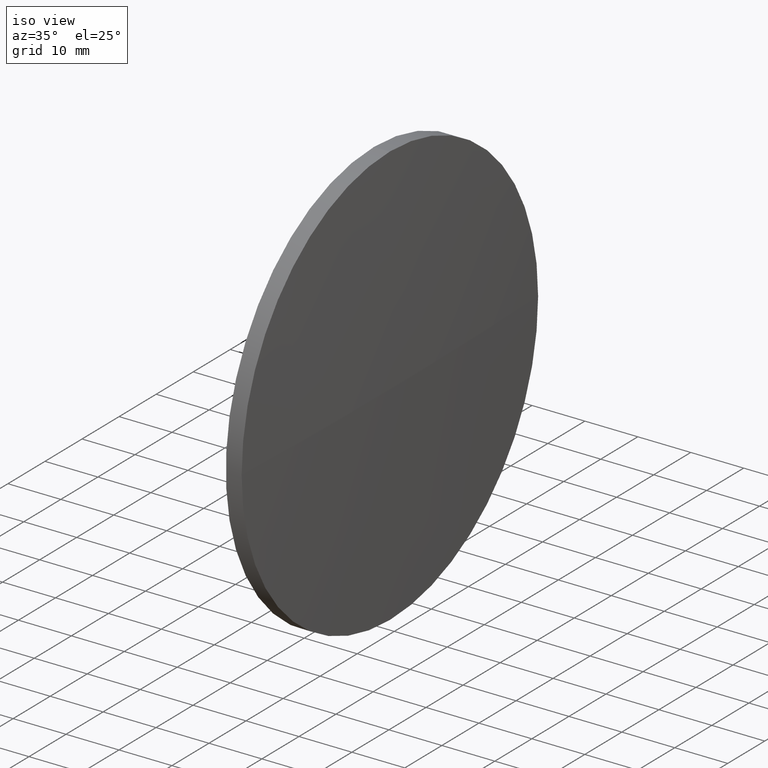
[diagram: clean part render]
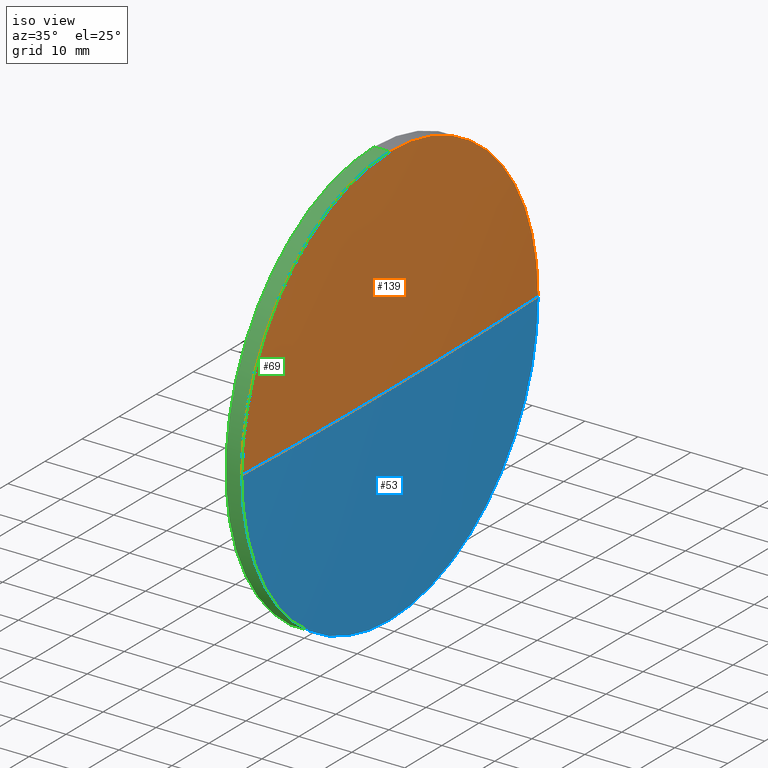
[diagram: same view with three faces highlighted in distinct colors, each labeled with its STEP entity id]
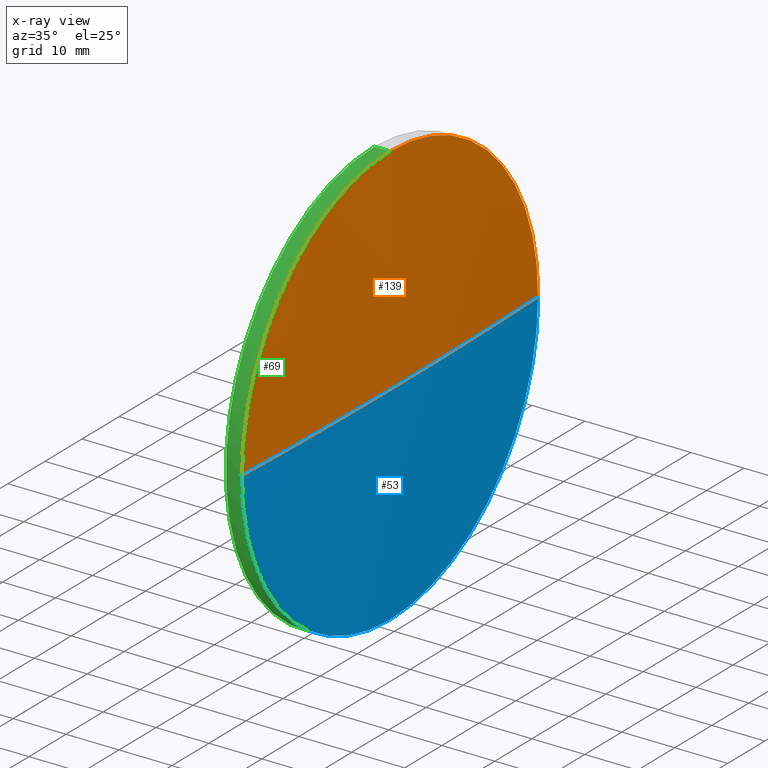
[diagram: x-ray of the same camera — body ghosted, the three highlighted faces saturated]
A machine part, iso view with three faces highlighted in distinct colors.
The next image is the same camera in x-ray (body ghosted, the three faces saturated) — at least one of them is partly hidden behind the body in this view.
Their STEP definitions:

[orange] entity #139 — the highlighted spherical surface has radius 1039.35 mm.
#2 = ORIENTED_EDGE ( 'NONE', *, *, #112, .F. ) ;
#24 = DIRECTION ( 'NONE',  ( 0.0000000000000000000, -1.000000000000000000, -1.224646799147353500E-016 ) ) ;
#26 = AXIS2_PLACEMENT_3D ( 'NONE', #171, #132, #120 ) ;
#36 = CARTESIAN_POINT ( 'NONE',  ( -799.4299126226408100, 130.0418907599256200, 0.0000000000000000000 ) ) ;
#41 = CIRCLE ( 'NONE', #54, 1039.346038961101200 ) ;
#47 = DIRECTION ( 'NONE',  ( 0.0000000000000000000, 0.0000000000000000000, 1.000000000000000000 ) ) ;
#54 = AXIS2_PLACEMENT_3D ( 'NONE', #102, #115, #24 ) ;
#59 = DIRECTION ( 'NONE',  ( 0.0000000000000000000, 0.0000000000000000000, 1.000000000000000000 ) ) ;
#62 = DIRECTION ( 'NONE',  ( 0.0000000000000000000, 0.0000000000000000000, -1.000000000000000000 ) ) ;
#63 = CARTESIAN_POINT ( 'NONE',  ( 239.1461263384604500, 170.0418907599239400, 4.898587196589211100E-015 ) ) ;
#73 = DIRECTION ( 'NONE',  ( -1.000000000000000000, -0.0000000000000000000, -0.0000000000000000000 ) ) ;
#78 = AXIS2_PLACEMENT_3D ( 'NONE', #36, #62, #182 ) ;
#82 = CIRCLE ( 'NONE', #84, 40.00000000000000700 ) ;
#84 = AXIS2_PLACEMENT_3D ( 'NONE', #147, #73, #59 ) ;
#89 = CIRCLE ( 'NONE', #26, 40.00000000000000700 ) ;
#90 = CARTESIAN_POINT ( 'NONE',  ( 239.9161263384602600, 130.0418907599255600, 0.0000000000000000000 ) ) ;
#91 = ORIENTED_EDGE ( 'NONE', *, *, #175, .F. ) ;
#102 = CARTESIAN_POINT ( 'NONE',  ( -799.4299126226408100, 130.0418907599256200, 0.0000000000000000000 ) ) ;
#107 = VERTEX_POINT ( 'NONE', #113 ) ;
#110 = FACE_OUTER_BOUND ( 'NONE', #153, .T. ) ;
#112 = EDGE_CURVE ( 'NONE', #107, #140, #89, .T. ) ;
#113 = CARTESIAN_POINT ( 'NONE',  ( 239.1461263384603600, 130.0418907599245100, 40.00000000000000700 ) ) ;
#115 = DIRECTION ( 'NONE',  ( 0.0000000000000000000, -1.224646799147353200E-016, 1.000000000000000000 ) ) ;
#119 = SPHERICAL_SURFACE ( 'NONE', #172, 1039.346038961101200 ) ;
#120 = DIRECTION ( 'NONE',  ( 0.0000000000000000000, 0.0000000000000000000, 1.000000000000000000 ) ) ;
#132 = DIRECTION ( 'NONE',  ( -1.000000000000000000, -0.0000000000000000000, -0.0000000000000000000 ) ) ;
#133 = CARTESIAN_POINT ( 'NONE',  ( 239.1461263384604500, 90.04189075992616200, 0.0000000000000000000 ) ) ;
#134 = EDGE_CURVE ( 'NONE', #135, #107, #82, .T. ) ;
#135 = VERTEX_POINT ( 'NONE', #133 ) ;
#139 = ADVANCED_FACE ( 'NONE', ( #110 ), #119, .T. ) ;
#140 = VERTEX_POINT ( 'NONE', #63 ) ;
#147 = CARTESIAN_POINT ( 'NONE',  ( 239.1461263384603600, 130.0418907599245100, 0.0000000000000000000 ) ) ;
#151 = DIRECTION ( 'NONE',  ( 0.0000000000000000000, -1.000000000000000000, 0.0000000000000000000 ) ) ;
#152 = EDGE_CURVE ( 'NONE', #177, #140, #41, .T. ) ;
#153 = EDGE_LOOP ( 'NONE', ( #91, #157, #2, #176 ) ) ;
#157 = ORIENTED_EDGE ( 'NONE', *, *, #152, .T. ) ;
#158 = CIRCLE ( 'NONE', #78, 1039.346038961101200 ) ;
#169 = CARTESIAN_POINT ( 'NONE',  ( -799.4299126226408100, 130.0418907599256200, 0.0000000000000000000 ) ) ;
#171 = CARTESIAN_POINT ( 'NONE',  ( 239.1461263384603600, 130.0418907599245100, 0.0000000000000000000 ) ) ;
#172 = AXIS2_PLACEMENT_3D ( 'NONE', #169, #47, #151 ) ;
#175 = EDGE_CURVE ( 'NONE', #177, #135, #158, .T. ) ;
#176 = ORIENTED_EDGE ( 'NONE', *, *, #134, .F. ) ;
#177 = VERTEX_POINT ( 'NONE', #90 ) ;
#182 = DIRECTION ( 'NONE',  ( -1.000000000000000000, 0.0000000000000000000, 0.0000000000000000000 ) ) ;

[blue] entity #53 — the highlighted spherical surface has radius 1039.35 mm.
#1 = AXIS2_PLACEMENT_3D ( 'NONE', #111, #34, #42 ) ;
#8 = CARTESIAN_POINT ( 'NONE',  ( -799.4299126226408100, 130.0418907599256200, 0.0000000000000000000 ) ) ;
#14 = CIRCLE ( 'NONE', #1, 40.00000000000000700 ) ;
#15 = ORIENTED_EDGE ( 'NONE', *, *, #118, .F. ) ;
#23 = DIRECTION ( 'NONE',  ( -1.000000000000000000, -0.0000000000000000000, -0.0000000000000000000 ) ) ;
#24 = DIRECTION ( 'NONE',  ( 0.0000000000000000000, -1.000000000000000000, -1.224646799147353500E-016 ) ) ;
#33 = DIRECTION ( 'NONE',  ( 0.0000000000000000000, 0.0000000000000000000, 1.000000000000000000 ) ) ;
#34 = DIRECTION ( 'NONE',  ( -1.000000000000000000, -0.0000000000000000000, -0.0000000000000000000 ) ) ;
#36 = CARTESIAN_POINT ( 'NONE',  ( -799.4299126226408100, 130.0418907599256200, 0.0000000000000000000 ) ) ;
#38 = ORIENTED_EDGE ( 'NONE', *, *, #152, .F. ) ;
#41 = CIRCLE ( 'NONE', #54, 1039.346038961101200 ) ;
#42 = DIRECTION ( 'NONE',  ( 0.0000000000000000000, 0.0000000000000000000, 1.000000000000000000 ) ) ;
#43 = EDGE_CURVE ( 'NONE', #85, #135, #14, .T. ) ;
#46 = CARTESIAN_POINT ( 'NONE',  ( 239.1461263384603600, 130.0418907599245100, -40.00000000000000700 ) ) ;
#48 = SPHERICAL_SURFACE ( 'NONE', #64, 1039.346038961101200 ) ;
#51 = FACE_OUTER_BOUND ( 'NONE', #124, .T. ) ;
#52 = ORIENTED_EDGE ( 'NONE', *, *, #43, .F. ) ;
#53 = ADVANCED_FACE ( 'NONE', ( #51 ), #48, .T. ) ;
#54 = AXIS2_PLACEMENT_3D ( 'NONE', #102, #115, #24 ) ;
#60 = CARTESIAN_POINT ( 'NONE',  ( 239.1461263384603600, 130.0418907599245100, 0.0000000000000000000 ) ) ;
#62 = DIRECTION ( 'NONE',  ( 0.0000000000000000000, 0.0000000000000000000, -1.000000000000000000 ) ) ;
#63 = CARTESIAN_POINT ( 'NONE',  ( 239.1461263384604500, 170.0418907599239400, 4.898587196589211100E-015 ) ) ;
#64 = AXIS2_PLACEMENT_3D ( 'NONE', #8, #33, #96 ) ;
#70 = ORIENTED_EDGE ( 'NONE', *, *, #175, .T. ) ;
#78 = AXIS2_PLACEMENT_3D ( 'NONE', #36, #62, #182 ) ;
#85 = VERTEX_POINT ( 'NONE', #46 ) ;
#90 = CARTESIAN_POINT ( 'NONE',  ( 239.9161263384602600, 130.0418907599255600, 0.0000000000000000000 ) ) ;
#96 = DIRECTION ( 'NONE',  ( 0.0000000000000000000, -1.000000000000000000, 0.0000000000000000000 ) ) ;
#102 = CARTESIAN_POINT ( 'NONE',  ( -799.4299126226408100, 130.0418907599256200, 0.0000000000000000000 ) ) ;
#111 = CARTESIAN_POINT ( 'NONE',  ( 239.1461263384603600, 130.0418907599245100, 0.0000000000000000000 ) ) ;
#115 = DIRECTION ( 'NONE',  ( 0.0000000000000000000, -1.224646799147353200E-016, 1.000000000000000000 ) ) ;
#118 = EDGE_CURVE ( 'NONE', #140, #85, #122, .T. ) ;
#122 = CIRCLE ( 'NONE', #136, 40.00000000000000700 ) ;
#124 = EDGE_LOOP ( 'NONE', ( #38, #70, #52, #15 ) ) ;
#133 = CARTESIAN_POINT ( 'NONE',  ( 239.1461263384604500, 90.04189075992616200, 0.0000000000000000000 ) ) ;
#135 = VERTEX_POINT ( 'NONE', #133 ) ;
#136 = AXIS2_PLACEMENT_3D ( 'NONE', #60, #23, #150 ) ;
#140 = VERTEX_POINT ( 'NONE', #63 ) ;
#150 = DIRECTION ( 'NONE',  ( 0.0000000000000000000, 0.0000000000000000000, 1.000000000000000000 ) ) ;
#152 = EDGE_CURVE ( 'NONE', #177, #140, #41, .T. ) ;
#158 = CIRCLE ( 'NONE', #78, 1039.346038961101200 ) ;
#175 = EDGE_CURVE ( 'NONE', #177, #135, #158, .T. ) ;
#177 = VERTEX_POINT ( 'NONE', #90 ) ;
#182 = DIRECTION ( 'NONE',  ( -1.000000000000000000, 0.0000000000000000000, 0.0000000000000000000 ) ) ;

[green] entity #69 — the highlighted cylindrical surface (partial cylindrical patch) has radius 40 mm, axis along (-1, -0, -0).
#1 = AXIS2_PLACEMENT_3D ( 'NONE', #111, #34, #42 ) ;
#9 = LINE ( 'NONE', #98, #114 ) ;
#14 = CIRCLE ( 'NONE', #1, 40.00000000000000700 ) ;
#17 = LINE ( 'NONE', #129, #156 ) ;
#21 = EDGE_CURVE ( 'NONE', #85, #106, #9, .T. ) ;
#25 = EDGE_CURVE ( 'NONE', #106, #180, #105, .T. ) ;
#31 = EDGE_LOOP ( 'NONE', ( #121, #95, #65, #173, #32 ) ) ;
#32 = ORIENTED_EDGE ( 'NONE', *, *, #25, .F. ) ;
#34 = DIRECTION ( 'NONE',  ( -1.000000000000000000, -0.0000000000000000000, -0.0000000000000000000 ) ) ;
#42 = DIRECTION ( 'NONE',  ( 0.0000000000000000000, 0.0000000000000000000, 1.000000000000000000 ) ) ;
#43 = EDGE_CURVE ( 'NONE', #85, #135, #14, .T. ) ;
#44 = DIRECTION ( 'NONE',  ( -1.000000000000000000, -0.0000000000000000000, -0.0000000000000000000 ) ) ;
#46 = CARTESIAN_POINT ( 'NONE',  ( 239.1461263384603600, 130.0418907599245100, -40.00000000000000700 ) ) ;
#49 = AXIS2_PLACEMENT_3D ( 'NONE', #160, #57, #80 ) ;
#57 = DIRECTION ( 'NONE',  ( -1.000000000000000000, -0.0000000000000000000, -0.0000000000000000000 ) ) ;
#59 = DIRECTION ( 'NONE',  ( 0.0000000000000000000, 0.0000000000000000000, 1.000000000000000000 ) ) ;
#65 = ORIENTED_EDGE ( 'NONE', *, *, #134, .T. ) ;
#69 = ADVANCED_FACE ( 'NONE', ( #174 ), #170, .T. ) ;
#73 = DIRECTION ( 'NONE',  ( -1.000000000000000000, -0.0000000000000000000, -0.0000000000000000000 ) ) ;
#80 = DIRECTION ( 'NONE',  ( 0.0000000000000000000, 0.0000000000000000000, 1.000000000000000000 ) ) ;
#82 = CIRCLE ( 'NONE', #84, 40.00000000000000700 ) ;
#83 = DIRECTION ( 'NONE',  ( -1.000000000000000000, -0.0000000000000000000, -0.0000000000000000000 ) ) ;
#84 = AXIS2_PLACEMENT_3D ( 'NONE', #147, #73, #59 ) ;
#85 = VERTEX_POINT ( 'NONE', #46 ) ;
#95 = ORIENTED_EDGE ( 'NONE', *, *, #43, .T. ) ;
#98 = CARTESIAN_POINT ( 'NONE',  ( 217.3311486608872700, 130.0418907599245100, -40.00000000000000700 ) ) ;
#101 = CARTESIAN_POINT ( 'NONE',  ( 236.1561263384603500, 130.0418907599245100, -40.00000000000000700 ) ) ;
#105 = CIRCLE ( 'NONE', #49, 40.00000000000000700 ) ;
#106 = VERTEX_POINT ( 'NONE', #101 ) ;
#107 = VERTEX_POINT ( 'NONE', #113 ) ;
#111 = CARTESIAN_POINT ( 'NONE',  ( 239.1461263384603600, 130.0418907599245100, 0.0000000000000000000 ) ) ;
#113 = CARTESIAN_POINT ( 'NONE',  ( 239.1461263384603600, 130.0418907599245100, 40.00000000000000700 ) ) ;
#114 = VECTOR ( 'NONE', #83, 1000.000000000000000 ) ;
#121 = ORIENTED_EDGE ( 'NONE', *, *, #21, .F. ) ;
#129 = CARTESIAN_POINT ( 'NONE',  ( 217.3311486608872700, 130.0418907599245100, 40.00000000000000700 ) ) ;
#131 = CARTESIAN_POINT ( 'NONE',  ( 236.1561263384603500, 130.0418907599245100, 40.00000000000000700 ) ) ;
#133 = CARTESIAN_POINT ( 'NONE',  ( 239.1461263384604500, 90.04189075992616200, 0.0000000000000000000 ) ) ;
#134 = EDGE_CURVE ( 'NONE', #135, #107, #82, .T. ) ;
#135 = VERTEX_POINT ( 'NONE', #133 ) ;
#143 = CARTESIAN_POINT ( 'NONE',  ( 217.3311486608872700, 130.0418907599245100, 0.0000000000000000000 ) ) ;
#145 = DIRECTION ( 'NONE',  ( 0.0000000000000000000, 0.0000000000000000000, 1.000000000000000000 ) ) ;
#147 = CARTESIAN_POINT ( 'NONE',  ( 239.1461263384603600, 130.0418907599245100, 0.0000000000000000000 ) ) ;
#156 = VECTOR ( 'NONE', #44, 1000.000000000000000 ) ;
#159 = AXIS2_PLACEMENT_3D ( 'NONE', #143, #164, #145 ) ;
#160 = CARTESIAN_POINT ( 'NONE',  ( 236.1561263384603500, 130.0418907599245100, 0.0000000000000000000 ) ) ;
#162 = EDGE_CURVE ( 'NONE', #107, #180, #17, .T. ) ;
#164 = DIRECTION ( 'NONE',  ( -1.000000000000000000, -0.0000000000000000000, -0.0000000000000000000 ) ) ;
#170 = CYLINDRICAL_SURFACE ( 'NONE', #159, 40.00000000000000700 ) ;
#173 = ORIENTED_EDGE ( 'NONE', *, *, #162, .T. ) ;
#174 = FACE_OUTER_BOUND ( 'NONE', #31, .T. ) ;
#180 = VERTEX_POINT ( 'NONE', #131 ) ;